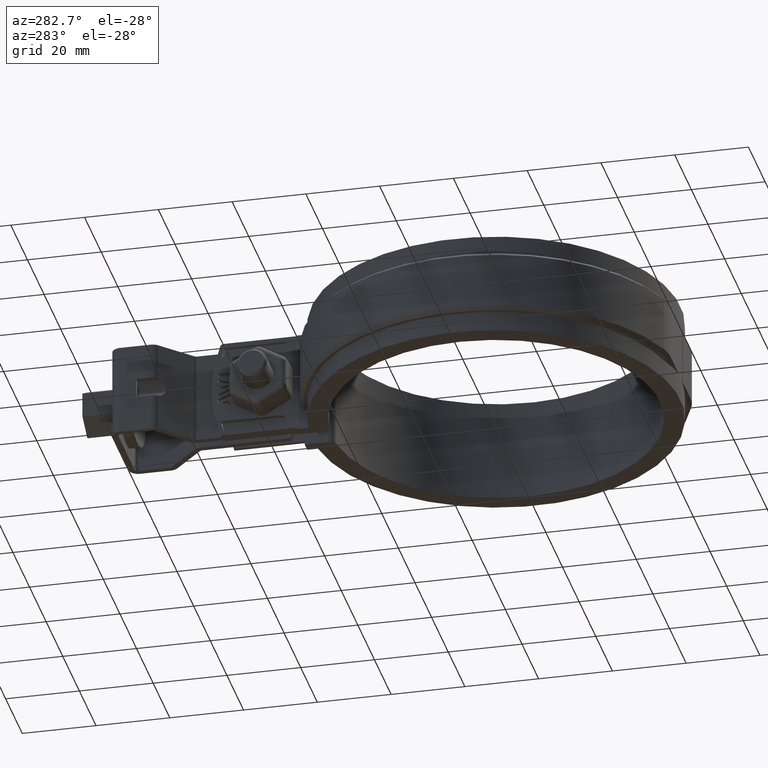
[diagram: clean part render]
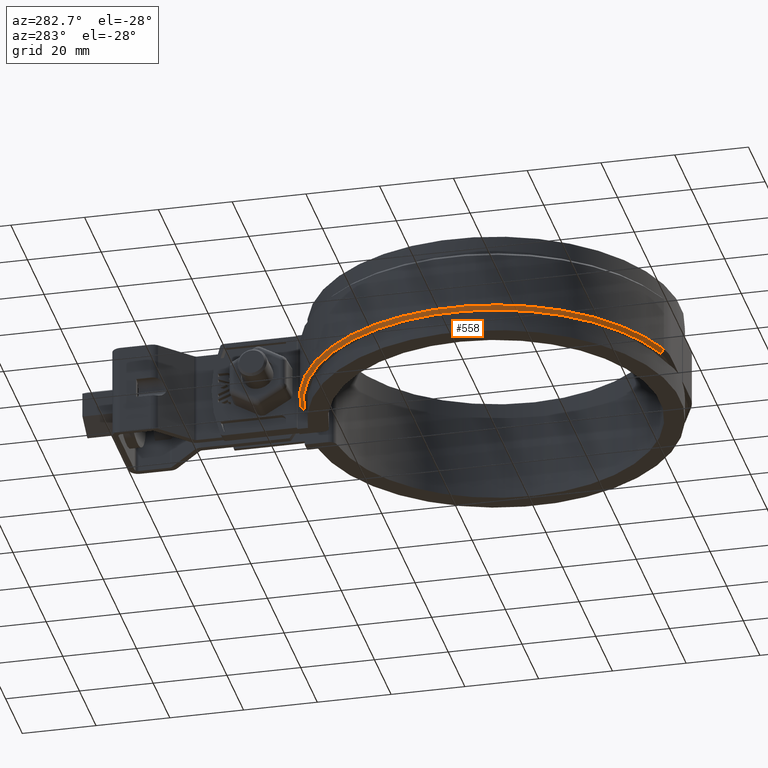
[diagram: same view with one face highlighted and labeled with its STEP entity id]
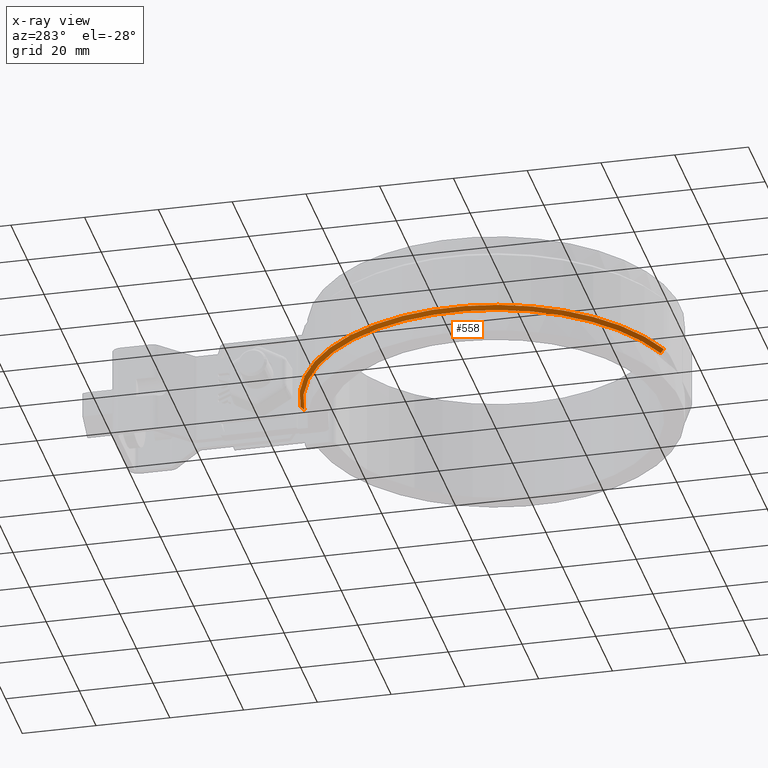
[diagram: x-ray of the same camera — body ghosted, the highlighted face saturated]
A machine part, auxiliary view. The second image highlights one B-rep face of the part: STEP entity #558.
The next image is the same camera in x-ray: the body ghosted, the highlighted face saturated — about 0% of this face is hidden behind the body in this view.
In plain terms, the highlighted conical surface has half-angle 45 deg.
Its self-contained STEP definition (entity closure, byte-faithful):
#558 = ADVANCED_FACE( '', ( #1027 ), #1028, .T. );
#1027 = FACE_OUTER_BOUND( '', #2360, .T. );
#1028 = CONICAL_SURFACE( '', #2361, 52.0000000000000, 0.785398163397448 );
#2360 = EDGE_LOOP( '', ( #5053, #5054, #5055, #5056 ) );
#2361 = AXIS2_PLACEMENT_3D( '', #5057, #5058, #5059 );
#5053 = ORIENTED_EDGE( '', *, *, #7668, .F. );
#5054 = ORIENTED_EDGE( '', *, *, #7676, .F. );
#5055 = ORIENTED_EDGE( '', *, *, #7677, .F. );
#5056 = ORIENTED_EDGE( '', *, *, #7678, .F. );
#5057 = CARTESIAN_POINT( '', ( 0.000000000000000, 6.93889390390723E-015, -7.50000000000000 ) );
#5058 = DIRECTION( '', ( 0.000000000000000, 0.000000000000000, 1.00000000000000 ) );
#5059 = DIRECTION( '', ( 1.00000000000000, 0.000000000000000, 0.000000000000000 ) );
#7668 = EDGE_CURVE( '', #8922, #8925, #8926, .T. );
#7676 = EDGE_CURVE( '', #8939, #8922, #8940, .F. );
#7677 = EDGE_CURVE( '', #8941, #8939, #8942, .T. );
#7678 = EDGE_CURVE( '', #8925, #8941, #8943, .T. );
#8922 = VERTEX_POINT( '', #12759 );
#8925 = VERTEX_POINT( '', #12763 );
#8926 = B_SPLINE_CURVE_WITH_KNOTS( '', 3, ( #12764, #12765, #12766, #12767 ), .UNSPECIFIED., .F., .F., ( 4, 4 ), ( 0.000000000000000, 0.00141907064164826 ), .UNSPECIFIED. );
#8939 = VERTEX_POINT( '', #12789 );
#8940 = CIRCLE( '', #12790, 51.0000000000000 );
#8941 = VERTEX_POINT( '', #12791 );
#8942 = LINE( '', #12792, #12793 );
#8943 = CIRCLE( '', #12794, 52.0000000000000 );
#12759 = CARTESIAN_POINT( '', ( -6.00000000000000, 50.6458290484024, -8.50000000000000 ) );
#12763 = CARTESIAN_POINT( '', ( -6.00000000000000, 51.6526862805798, -7.50000000000000 ) );
#12764 = CARTESIAN_POINT( '', ( -6.00000000000000, 50.6458290484024, -8.50000000000000 ) );
#12765 = CARTESIAN_POINT( '', ( -6.00000000000000, 50.9814706121009, -8.16668930869391 ) );
#12766 = CARTESIAN_POINT( '', ( -6.00000000000000, 51.3170892556212, -7.83335553551698 ) );
#12767 = CARTESIAN_POINT( '', ( -6.00000000000000, 51.6526862805798, -7.50000000000000 ) );
#12789 = CARTESIAN_POINT( '', ( -16.3381451583999, -48.3121621621621, -8.50000000000000 ) );
#12790 = AXIS2_PLACEMENT_3D( '', #14798, #14799, #14800 );
#12791 = CARTESIAN_POINT( '', ( -16.6585009458195, -49.2594594594595, -7.50000000000000 ) );
#12792 = CARTESIAN_POINT( '', ( -16.6585009458195, -49.2594594594594, -7.50000000000000 ) );
#12793 = VECTOR( '', #14801, 1000.00000000000 );
#12794 = AXIS2_PLACEMENT_3D( '', #14802, #14803, #14804 );
#14798 = CARTESIAN_POINT( '', ( 0.000000000000000, 6.93889390390723E-015, -8.50000000000000 ) );
#14799 = DIRECTION( '', ( 0.000000000000000, 0.000000000000000, 1.00000000000000 ) );
#14800 = DIRECTION( '', ( 1.00000000000000, 0.000000000000000, 0.000000000000000 ) );
#14801 = DIRECTION( '', ( 0.226525749676757, 0.669840342718608, -0.707106781186548 ) );
#14802 = CARTESIAN_POINT( '', ( 0.000000000000000, 6.93889390390723E-015, -7.50000000000000 ) );
#14803 = DIRECTION( '', ( 0.000000000000000, 0.000000000000000, 1.00000000000000 ) );
#14804 = DIRECTION( '', ( 1.00000000000000, 0.000000000000000, 0.000000000000000 ) );